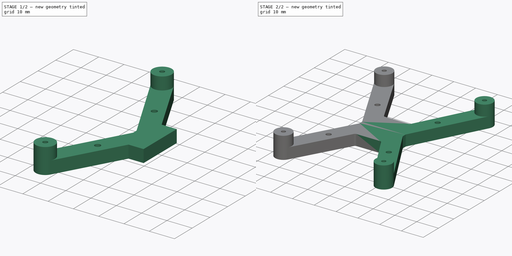
[diagram: build sequence overview — one tinted view per stage of 2, left to right]
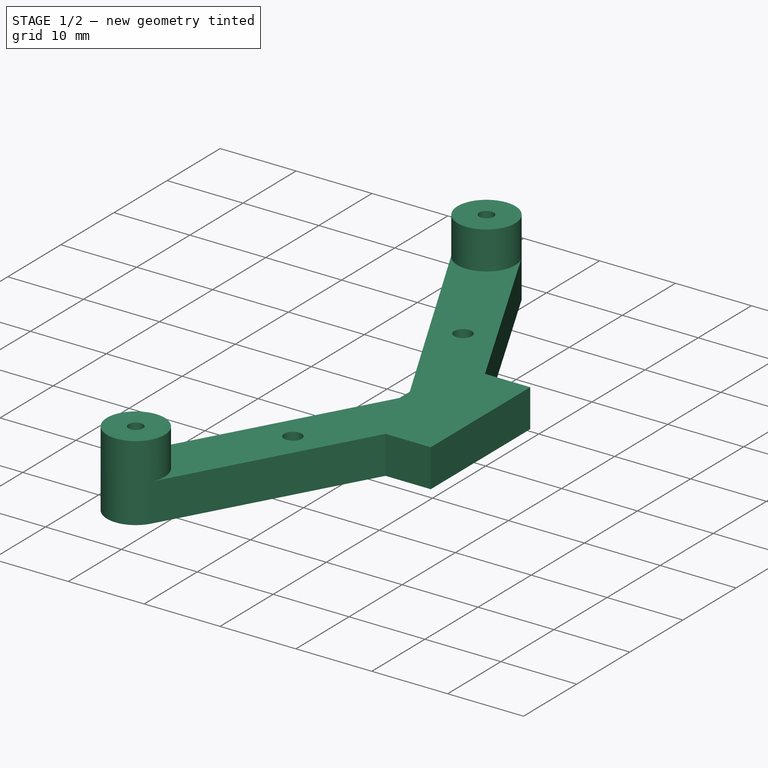
[diagram: stage 1 of 2 — iso view after this stage's code; geometry added in this stage tinted green]
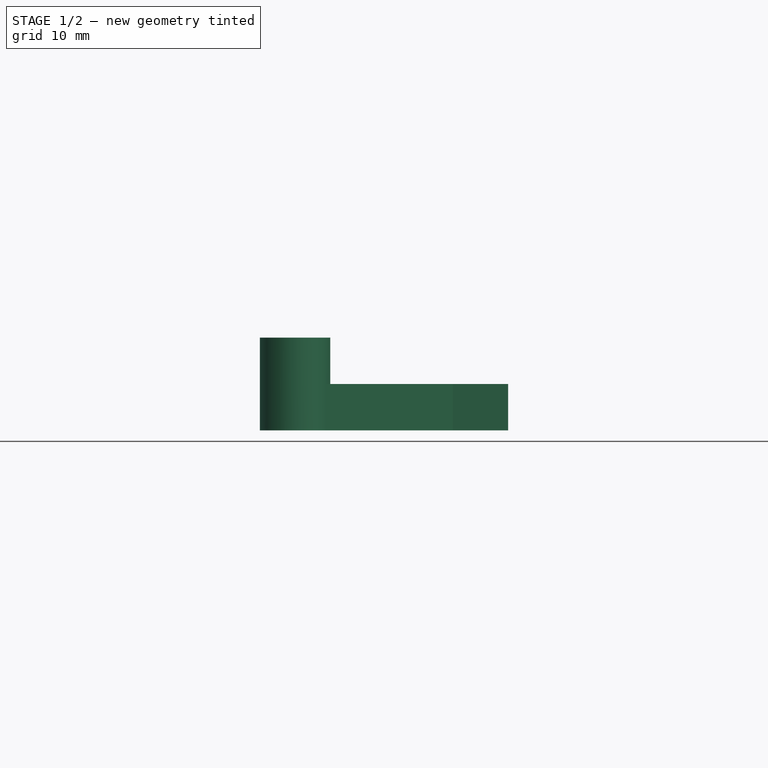
[diagram: stage 1 of 2 — front view after this stage's code; geometry added in this stage tinted green]
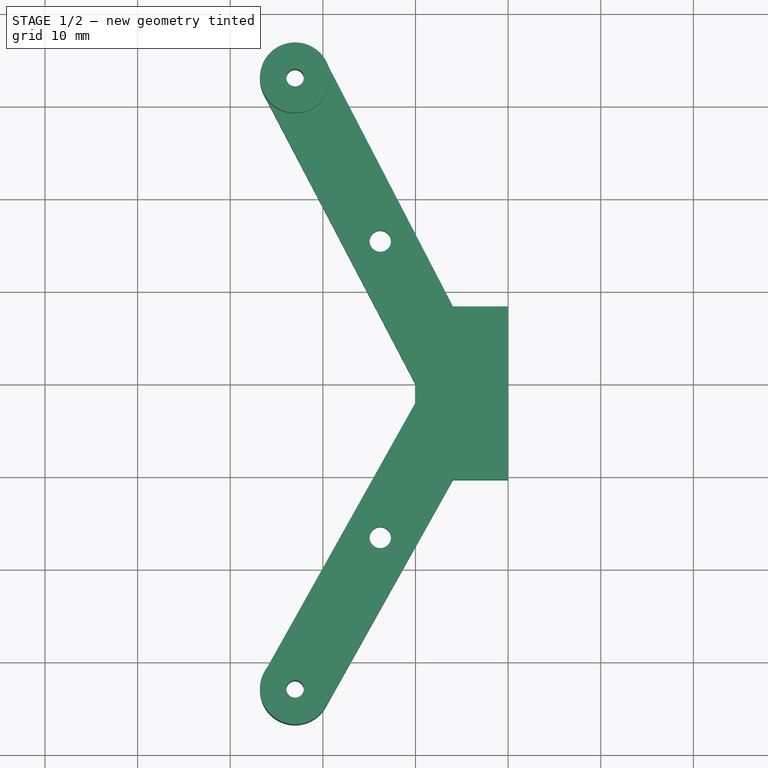
[diagram: stage 1 of 2 — top view after this stage's code; geometry added in this stage tinted green]
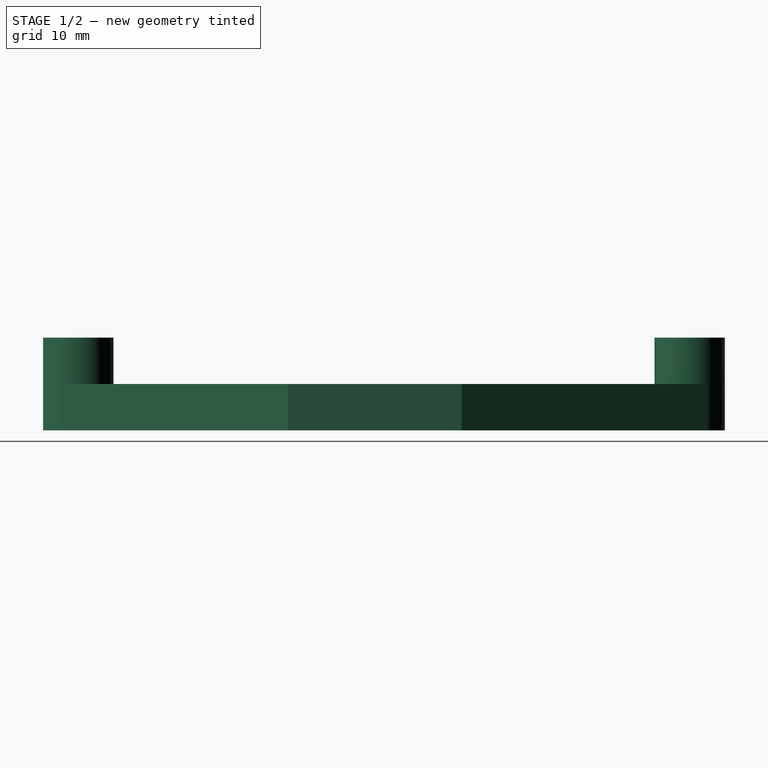
[diagram: stage 1 of 2 — right view after this stage's code; geometry added in this stage tinted green]
FCSTD DOCUMENT  (FreeCAD 1.0R38641 +468 (Git))
Label: pcb_mount
License: All rights reserved
LicenseURL: https://en.wikipedia.org/wiki/All_rights_reserved
objects: Sketcher::SketchObject×2, PartDesign::Pad×2, Spreadsheet::Sheet×1, PartDesign::Mirrored×1, PartDesign::Fillet×1, PartDesign::Body×1
note: 16 computed .brp shape members not serialized (recipe doc carries the construction recipe); baked Part::Feature solids carry a one-line shape summary decoded from their .brp

FEATURE [Sketcher::SketchObject] Sketch
  ArcFitTolerance = 1e-06
  AttachmentSupport = -> [XY_Plane]
  FullyConstrained = false
  MakeInternals = false
  MapMode = 5
  expr: Constraints[12] = <<ss>>.holes_dia
  expr: Constraints[30] = <<ss>>.holes_dia * 2
  expr: Constraints[56] = <<ss>>.pcb_y
  expr: Constraints[57] = <<ss>>.pcb_x * 0.3
  expr: Constraints[58] = <<ss>>.pcb_x / 2
  sketch-geometry (33):
    g0: LineSegment [constr] StartX=-23 StartY=-33 StartZ=0 EndX=23 EndY=-33 EndZ=0
    g1: LineSegment [constr] StartX=23 StartY=-33 StartZ=0 EndX=23 EndY=33 EndZ=0
    g2: LineSegment [constr] StartX=23 StartY=33 StartZ=0 EndX=-23 EndY=33 EndZ=0
    g3: LineSegment [constr] StartX=-23 StartY=33 StartZ=0 EndX=-23 EndY=-33 EndZ=0
    g4: GeomPoint [constr] X=0 Y=0 Z=0
    g5: Circle CenterX=-23 CenterY=33 CenterZ=0 NormalX=0 NormalY=0 NormalZ=1 AngleXU=0 Radius=0.95
    g6: Circle CenterX=-23 CenterY=-33 CenterZ=0 NormalX=0 NormalY=0 NormalZ=1 AngleXU=0 Radius=0.95
    g7: Circle CenterX=-13.8 CenterY=15.435 CenterZ=0 NormalX=0 NormalY=0 NormalZ=1 AngleXU=0 Radius=1.15
    g8: Circle CenterX=-13.8 CenterY=-16.565 CenterZ=0 NormalX=0 NormalY=0 NormalZ=1 AngleXU=0 Radius=1.15
    g9: GeomPoint [constr] X=0 Y=0 Z=0
    g10: LineSegment [constr] StartX=-13.8 StartY=15.435 StartZ=0 EndX=-23 EndY=33 EndZ=0
    g11: ArcOfCircle [constr] CenterX=-13.8 CenterY=-16.565 CenterZ=0 NormalX=0 NormalY=0 NormalZ=1 AngleXU=0 Radius=3.8 StartAngle=5.77286 EndAngle=8.91446
    g12: ArcOfCircle CenterX=-23 CenterY=-33 CenterZ=0 NormalX=0 NormalY=0 NormalZ=1 AngleXU=0 Radius=3.8 StartAngle=2.63127 EndAngle=5.77286
    g13: LineSegment [constr] StartX=-10.4842 StartY=-18.4212 StartZ=0 EndX=-19.6842 EndY=-34.8561 EndZ=0
    g14: LineSegment [constr] StartX=-17.1158 StartY=-14.7089 StartZ=0 EndX=-26.3158 EndY=-31.1439 EndZ=0
    g15: ArcOfCircle [constr] CenterX=-13.8 CenterY=15.435 CenterZ=0 NormalX=0 NormalY=0 NormalZ=1 AngleXU=0 Radius=3.8 StartAngle=3.62407 EndAngle=6.54989
    g16: ArcOfCircle CenterX=-23 CenterY=33 CenterZ=0 NormalX=0 NormalY=0 NormalZ=1 AngleXU=0 Radius=3.8 StartAngle=0.47821 EndAngle=3.62407
    g17: LineSegment [constr] StartX=-17.1662 StartY=13.6718 StartZ=0 EndX=-26.3662 EndY=31.2369 EndZ=0
    g18: LineSegment [constr] StartX=-16.3 StartY=-17.935 StartZ=0 EndX=16.3 EndY=-17.935 EndZ=0
    g19: LineSegment [constr] StartX=16.3 StartY=-17.935 StartZ=0 EndX=16.3 EndY=17.935 EndZ=0
    g20: LineSegment [constr] StartX=16.3 StartY=17.935 StartZ=0 EndX=-16.3 EndY=17.935 EndZ=0
    g21: LineSegment [constr] StartX=-16.3 StartY=17.935 StartZ=0 EndX=-16.3 EndY=-17.935 EndZ=0
    g22: GeomPoint [constr] X=0 Y=0 Z=0
    g23: LineSegment [constr] StartX=-19.6263 StartY=34.7487 StartZ=0 EndX=-10.1343 EndY=16.4364 EndZ=0
    g24: LineSegment StartX=-19.6263 StartY=34.7487 StartZ=0 EndX=-5.9592 EndY=8.38156 EndZ=0
    g25: LineSegment StartX=-19.6842 StartY=-34.8561 StartZ=0 EndX=-5.9592 EndY=-10.3377 EndZ=0
    g26: LineSegment StartX=-26.3662 StartY=31.2369 StartZ=0 EndX=-9.98888 EndY=-0.0314564 EndZ=0
    g27: LineSegment StartX=-9.98888 StartY=-0.0314564 StartZ=0 EndX=-9.98888 EndY=-1.97727 EndZ=0
    g28: LineSegment StartX=-9.98888 StartY=-1.97727 StartZ=0 EndX=-26.3158 EndY=-31.1439 EndZ=0
    g29: GeomPoint X=-29.4836 Y=53.766 Z=0
    g30: LineSegment StartX=-5.9592 StartY=8.38156 StartZ=0 EndX=0 EndY=8.38156 EndZ=0
    g31: LineSegment StartX=-5.9592 StartY=-10.3377 StartZ=0 EndX=0 EndY=-10.3377 EndZ=0
    g32: LineSegment StartX=0 StartY=-10.3377 StartZ=0 EndX=0 EndY=8.38156 EndZ=0
  constraints (68):
    c: Coincident(g0,g1)
    c: Coincident(g1,g2)
    c: Coincident(g2,g3)
    c: Coincident(g3,g0)
    c: Horizontal(g0)
    c: Horizontal(g2)
    c: Vertical(g1)
    c: Vertical(g3)
    c: Symmetric(g2,g0,g4)
    c: Coincident(g4,g-1)
    c: Coincident(g5,g2)
    c: Coincident(g6,g0)
    c: Diameter(g5) = 1.9
    c: Vertical(g8,g7)
    c: Coincident(g9,g4)
    c: Coincident(g10,g7)
    c: Coincident(g10,g2)
    c: Tangent(g11,g13) = 1.5708
    c: Tangent(g11,g14) = -1.5708
    c: Tangent(g12,g13) = 1.5708
    c: Tangent(g12,g14) = -1.5708
    c: Equal(g11,g12)
    c: Coincident(g11,g8)
    c: Coincident(g12,g0)
    c: Tangent(g15,g17) = 1.5708
    c: Tangent(g16,g17) = 1.5708
    c: Equal(g15,g16)
    c: Coincident(g15,g7)
    c: Coincident(g16,g2)
    c: Equal(g16,g12)
    c: Radius(g16) = 3.8
    c: Coincident(g18,g19)
    c: Coincident(g19,g20)
    c: Coincident(g20,g21)
    c: Coincident(g21,g18)
    c: Horizontal(g18)
    c: Horizontal(g20)
    c: Vertical(g19)
    c: Vertical(g21)
    c: Symmetric(g20,g18,g22)
    c: Coincident(g22,g4)
    c: DistanceY(g7,g20) = 2.5
    c: DistanceX(g20,g7) = 2.5
    c: Coincident(g23,g16)
    c: Coincident(g23,g15)
    c: Tangent(g16,g24) = 1.5708
    c: Tangent(g12,g25) = -1.5708
    c: Tangent(g16,g26) = -1.5708
    c: Coincident(g26,g27)
    c: Vertical(g27)
    c: Coincident(g27,g28)
    c: Coincident(g28,g12)
    c: Tangent(g28,g11)
    c: PointOnObject(g29,g24)
    c: PointOnObject(g29,g23)
    c: DistanceY(g8,g7) = 32
    c: DistanceY(g0,g2) = 66
    c: DistanceX(g7,g4) = 13.8
    c: DistanceX(g0,g4) = 23
    c: Vertical(g24,g25)
    c: Coincident(g24,g30)
    c: PointOnObject(g30,g-2)
    c: Horizontal(g30)
    c: Coincident(g25,g31)
    c: PointOnObject(g31,g-2)
    c: Horizontal(g31)
    c: Coincident(g31,g32)
    c: Coincident(g32,g30)
FEATURE [Spreadsheet::Sheet] Spreadsheet  label="ss"
  cells = A2='take in acount holes distances; A3='pcb_x; B3(pcb_x)=46; A4='pcb_y; B4(pcb_y)=66; A6='holes_dia; B6(holes_dia)=1.9
FEATURE [PartDesign::Pad] Pad
  Direction = (0,0,1)
  Length = 5
  Length2 = 10
  Profile = -> Sketch
  ReferenceAxis = -> Sketch [N_Axis]
  Refine = true
  Suppressed = false
  Type = 0
FEATURE [Sketcher::SketchObject] Sketch001
  ArcFitTolerance = 1e-06
  AttachmentSupport = -> [Pad]
  ExternalGeometry = -> [Pad]
  FullyConstrained = false
  MakeInternals = false
  MapMode = 5
  Placement = pos=(0,0,5) rot=(0,0,1;0rad)
  sketch-geometry (4):
    g0: Circle CenterX=-23 CenterY=33 CenterZ=0 NormalX=0 NormalY=0 NormalZ=1 AngleXU=0 Radius=3.8
    g1: Circle CenterX=-23 CenterY=33 CenterZ=0 NormalX=0 NormalY=0 NormalZ=1 AngleXU=0 Radius=0.95
    g2: Circle CenterX=-23 CenterY=-33 CenterZ=0 NormalX=0 NormalY=0 NormalZ=1 AngleXU=0 Radius=0.95
    g3: Circle CenterX=-23 CenterY=-33 CenterZ=0 NormalX=0 NormalY=0 NormalZ=1 AngleXU=0 Radius=3.8
  constraints (6):
    c: Coincident(g0,g-6)
    c: PointOnObject(g-6,g0)
    c: Coincident(g1,g0)
    c: Coincident(g2,g-5)
    c: Coincident(g3,g2)
    c: PointOnObject(g-5,g3)
FEATURE [PartDesign::Pad] Pad001
  BaseFeature = -> Pad
  Direction = (0,0,1)
  Length = 5
  Length2 = 10
  Profile = -> Sketch001
  ReferenceAxis = -> Sketch001 [N_Axis]
  Refine = true
  Suppressed = false
  Type = 0
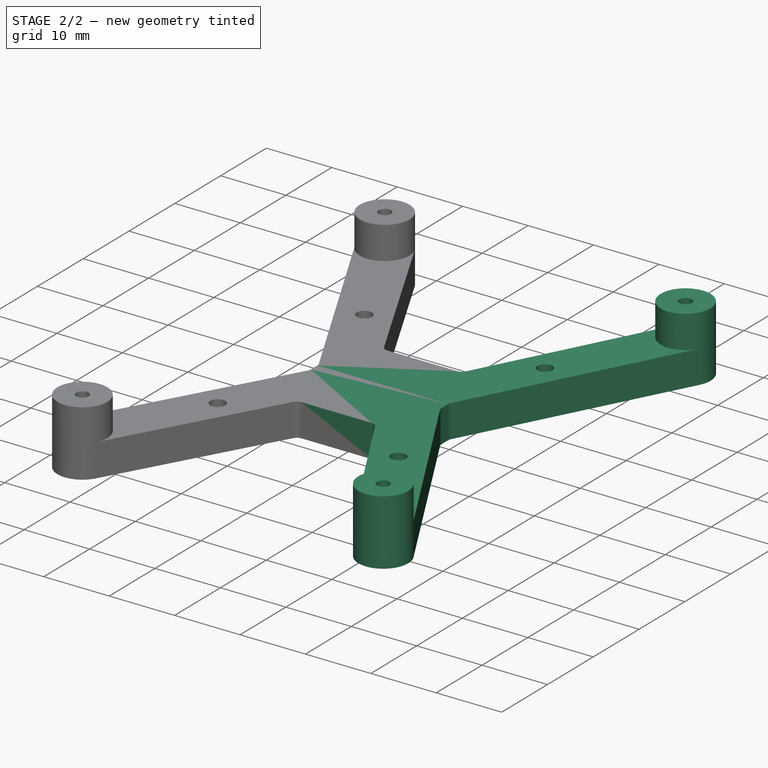
[diagram: stage 2 of 2 — iso view after this stage's code; geometry added in this stage tinted green]
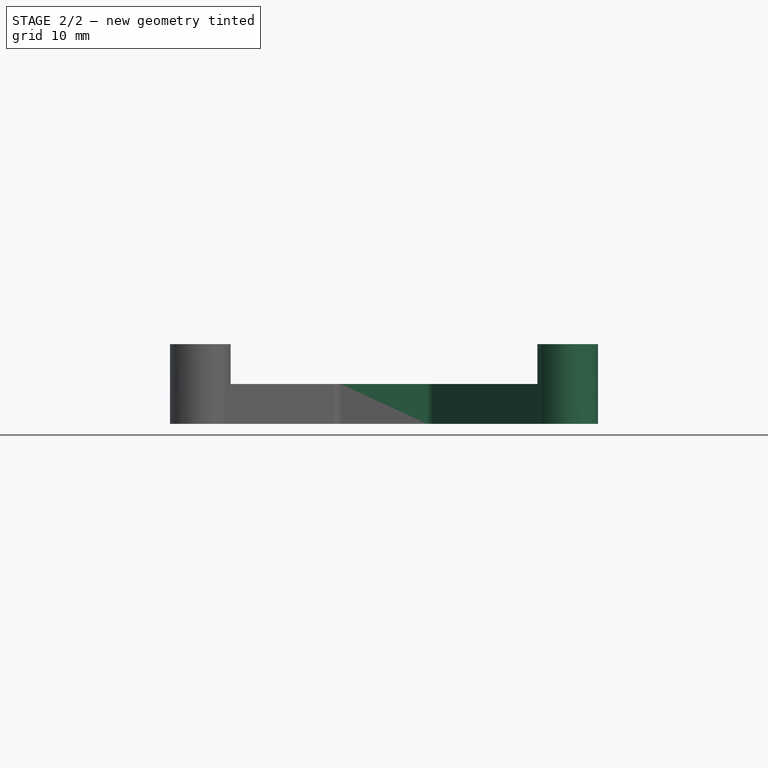
[diagram: stage 2 of 2 — front view after this stage's code; geometry added in this stage tinted green]
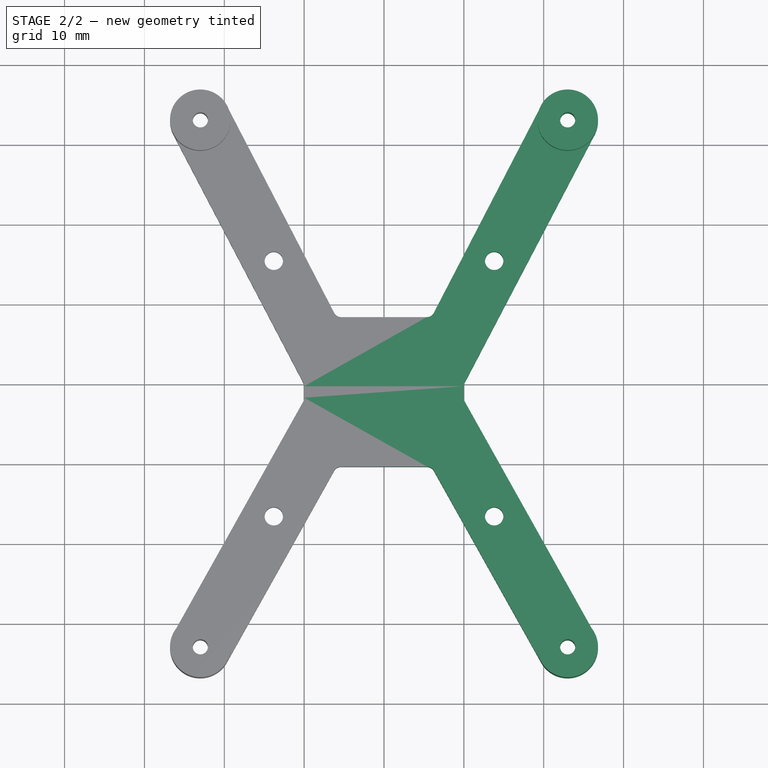
[diagram: stage 2 of 2 — top view after this stage's code; geometry added in this stage tinted green]
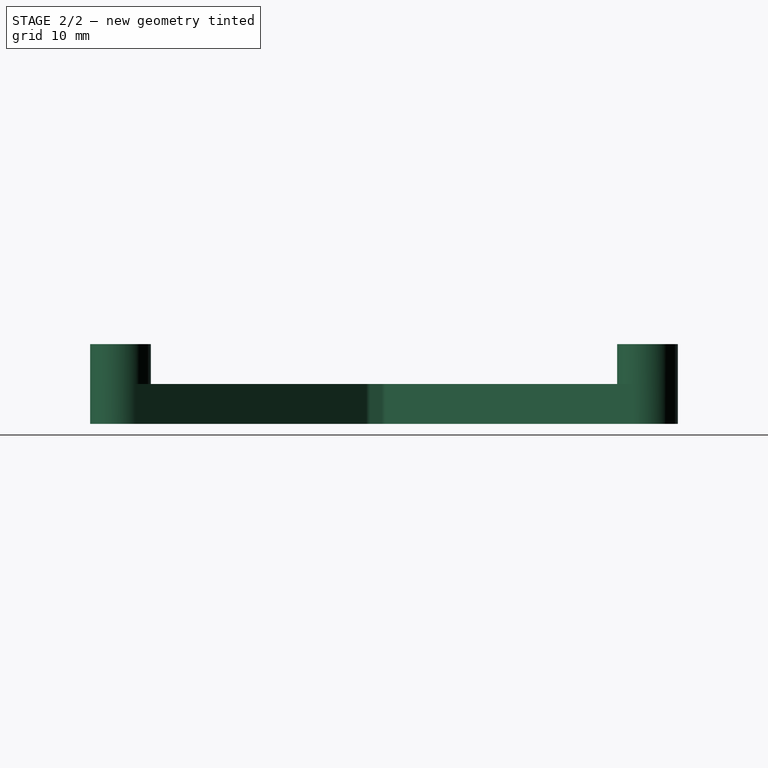
[diagram: stage 2 of 2 — right view after this stage's code; geometry added in this stage tinted green]
FEATURE [PartDesign::Mirrored] Mirrored
  BaseFeature = -> Pad001
  MirrorPlane = -> Sketch001 [V_Axis]
  Originals = -> [Pad001]
  Refine = true
  Suppressed = false
  TransformMode = 1
FEATURE [PartDesign::Fillet] Fillet
  Base = -> Mirrored [Edge27,Edge67,Edge2,Edge11,Edge14,Edge69,Edge58,Edge56]
  BaseFeature = -> Mirrored
  Radius = 1
  Refine = true
  SupportTransform = false
  Suppressed = false
  UseAllEdges = false
FEATURE [PartDesign::Body] Body
  AllowCompound = false
  Group = -> [Sketch,Pad,Sketch001,Pad001,Mirrored,Fillet]
  Origin = -> Origin
  Tip = -> Fillet
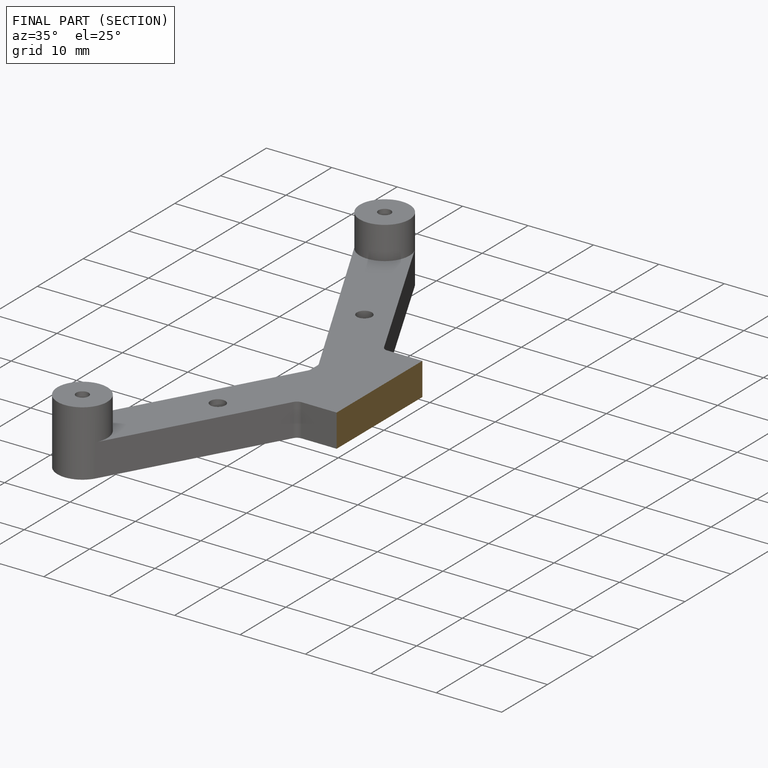
[diagram: finished part — half-section view (interior)]
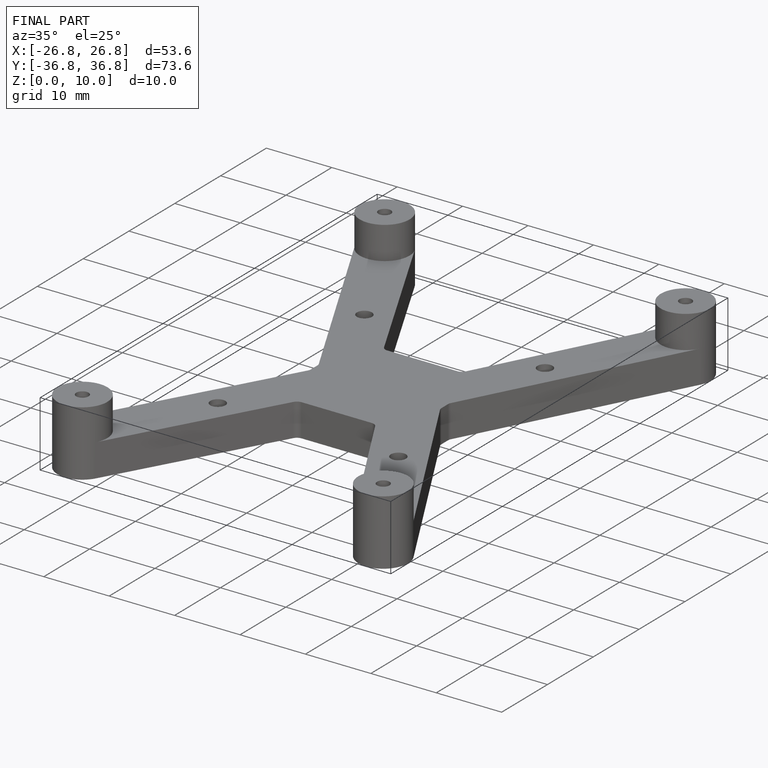
[diagram: finished part — iso view with bounding-box wireframe]
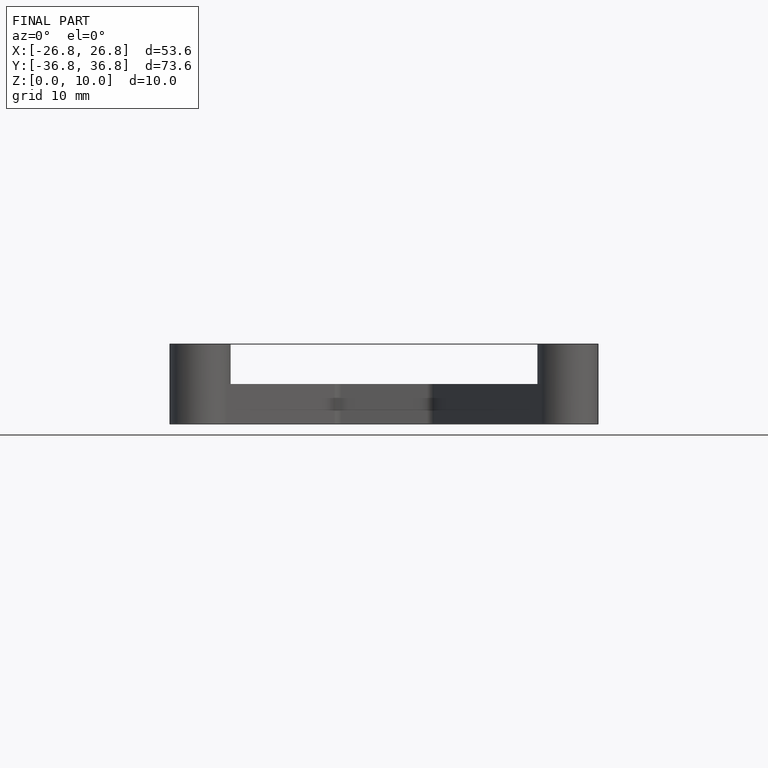
[diagram: finished part — front view with bounding-box wireframe]
